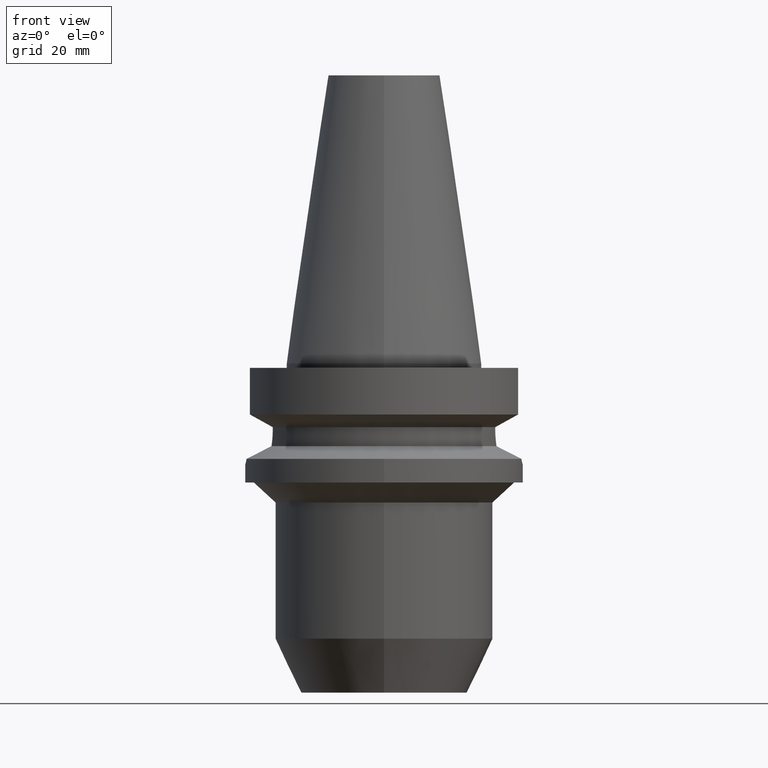
[diagram: clean part render]
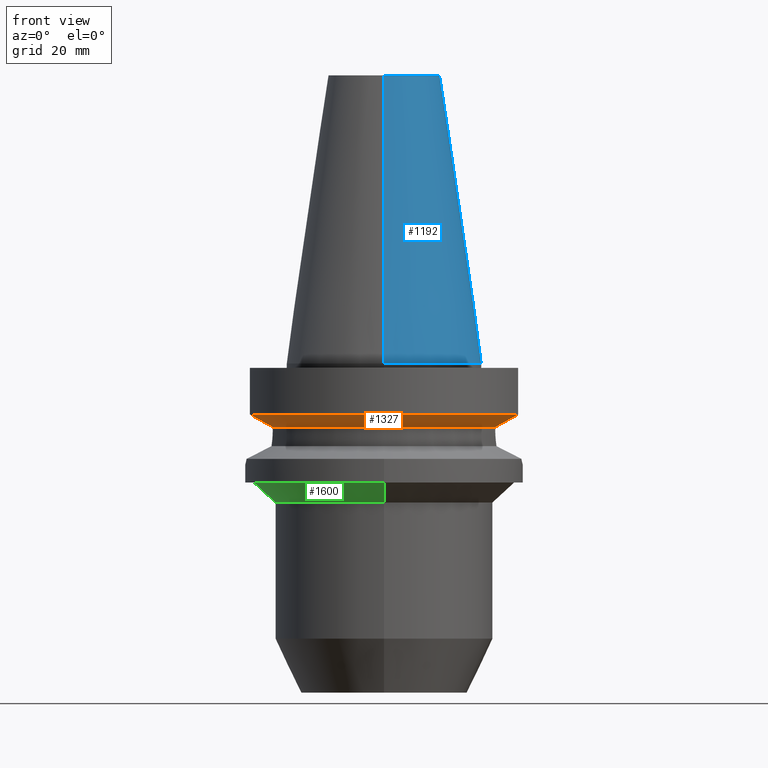
[diagram: same view with three faces highlighted in distinct colors, each labeled with its STEP entity id]
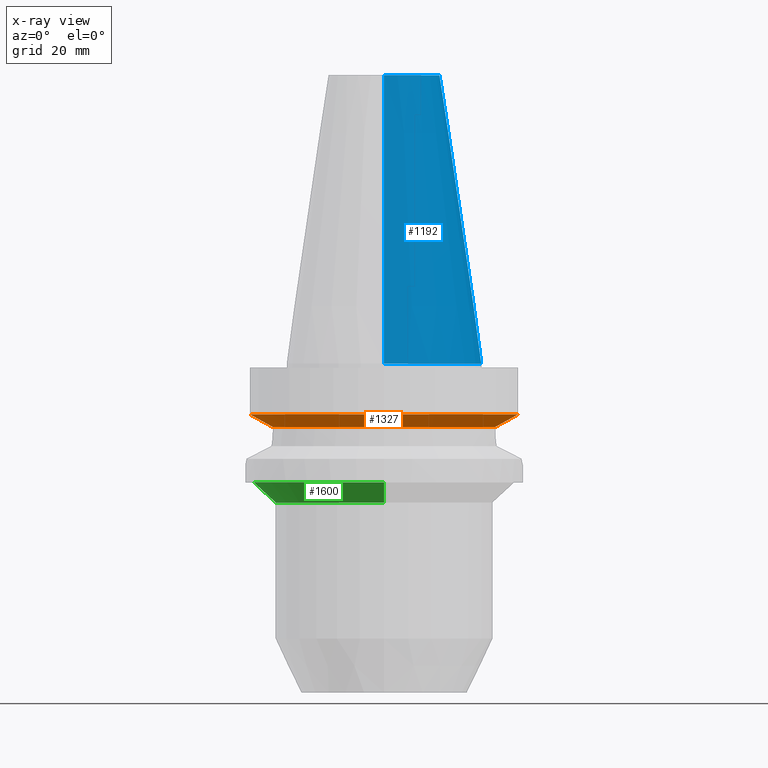
[diagram: x-ray of the same camera — body ghosted, the three highlighted faces saturated]
A machine part, front view with three faces highlighted in distinct colors.
The next image is the same camera in x-ray (body ghosted, the three faces saturated) — at least one of them is partly hidden behind the body in this view.
Their STEP definitions:

[orange] entity #1327 — the highlighted conical surface has half-angle 60 deg.
#207=CARTESIAN_POINT('',(-3.045402291444E1,-8.049999274961E0,
-1.156551218294E1));
#208=CARTESIAN_POINT('',(-2.987645776081E1,-8.049999274961E0,
-1.188789692372E1));
#209=CARTESIAN_POINT('',(-2.872091169851E1,-8.049999725977E0,
-1.253193797492E1));
#210=CARTESIAN_POINT('',(-2.698538635926E1,-8.050002046637E0,
-1.349404290632E1));
#211=CARTESIAN_POINT('',(-2.582730534774E1,-8.049995407196E0,
-1.413348345160E1));
#212=CARTESIAN_POINT('',(-2.524772413395E1,-8.049995407196E0,
-1.445229209363E1));
#251=CARTESIAN_POINT('',(0.E0,1.065333950388E-14,-1.156550565267E1));
#252=DIRECTION('',(0.E0,0.E0,1.E0));
#253=DIRECTION('',(-9.667943721520E-1,-2.555555555555E-1,0.E0));
#254=AXIS2_PLACEMENT_3D('',#251,#252,#253);
#259=CARTESIAN_POINT('',(0.E0,1.065333950388E-14,-1.156550565267E1));
#260=DIRECTION('',(0.E0,0.E0,1.E0));
#261=DIRECTION('',(0.E0,-1.E0,0.E0));
#262=AXIS2_PLACEMENT_3D('',#259,#260,#261);
#267=CARTESIAN_POINT('',(0.E0,1.065333950388E-14,-1.445225699861E1));
#268=DIRECTION('',(0.E0,0.E0,-1.E0));
#269=DIRECTION('',(9.527442516822E-1,-3.037735849057E-1,0.E0));
#270=AXIS2_PLACEMENT_3D('',#267,#268,#269);
#275=CARTESIAN_POINT('',(0.E0,1.065333950388E-14,-1.445225699861E1));
#276=DIRECTION('',(0.E0,0.E0,-1.E0));
#277=DIRECTION('',(0.E0,-1.E0,0.E0));
#278=AXIS2_PLACEMENT_3D('',#275,#276,#277);
#297=CARTESIAN_POINT('',(2.524772216615E1,-8.050001578933E0,-1.445224493417E1));
#298=CARTESIAN_POINT('',(2.582727365396E1,-8.050001578933E0,-1.413345271796E1));
#299=CARTESIAN_POINT('',(2.698547375107E1,-8.049999816622E0,-1.349419172193E1));
#300=CARTESIAN_POINT('',(2.872100135467E1,-8.049998273421E0,-1.253209131934E1));
#301=CARTESIAN_POINT('',(2.987642826708E1,-8.050004150935E0,-1.188786870602E1));
#302=CARTESIAN_POINT('',(3.045402162556E1,-8.050004150935E0,-1.156546826282E1));
#1097=CARTESIAN_POINT('',(-2.524772413395E1,-8.049995407196E0,
-1.445229209363E1));
#1098=VERTEX_POINT('',#1097);
#1099=CARTESIAN_POINT('',(2.524772266958E1,-8.05E0,-1.445225699861E1));
#1100=CARTESIAN_POINT('',(0.E0,-2.65E1,-1.445225699861E1));
#1101=VERTEX_POINT('',#1099);
#1102=VERTEX_POINT('',#1100);
#1113=CARTESIAN_POINT('',(-3.045402291444E1,-8.049999274961E0,
-1.156551218294E1));
#1114=VERTEX_POINT('',#1113);
#1140=CARTESIAN_POINT('',(0.E0,-3.15E1,-1.156550565267E1));
#1141=CARTESIAN_POINT('',(3.045402272279E1,-8.049999999999E0,
-1.156550565267E1));
#1142=VERTEX_POINT('',#1140);
#1143=VERTEX_POINT('',#1141);
#1311=CARTESIAN_POINT('',(0.E0,1.065333950388E-14,-1.300888132564E1));
#1312=DIRECTION('',(0.E0,0.E0,1.E0));
#1313=DIRECTION('',(0.E0,1.E0,0.E0));
#1314=AXIS2_PLACEMENT_3D('',#1311,#1312,#1313);
#1315=CONICAL_SURFACE('',#1314,2.9E1,6.E1);
#1316=ORIENTED_EDGE('',*,*,#1283,.F.);
#1318=ORIENTED_EDGE('',*,*,#1317,.T.);
#1320=ORIENTED_EDGE('',*,*,#1319,.T.);
#1322=ORIENTED_EDGE('',*,*,#1321,.F.);
#1323=ORIENTED_EDGE('',*,*,#1296,.T.);
#1324=ORIENTED_EDGE('',*,*,#1294,.T.);
#1325=EDGE_LOOP('',(#1316,#1318,#1320,#1322,#1323,#1324));
#1326=FACE_OUTER_BOUND('',#1325,.F.);
#213=B_SPLINE_CURVE_WITH_KNOTS('',3,(#207,#208,#209,#210,#211,#212),
.UNSPECIFIED.,.F.,.F.,(4,1,1,4),(0.E0,3.333333333333E-1,6.666666666667E-1,1.E0),
.UNSPECIFIED.);
#255=CIRCLE('',#254,3.15E1);
#263=CIRCLE('',#262,3.15E1);
#271=CIRCLE('',#270,2.65E1);
#279=CIRCLE('',#278,2.65E1);
#303=B_SPLINE_CURVE_WITH_KNOTS('',3,(#297,#298,#299,#300,#301,#302),
.UNSPECIFIED.,.F.,.F.,(4,1,1,4),(0.E0,3.333333333333E-1,6.666666666667E-1,1.E0),
.UNSPECIFIED.);
#1283=EDGE_CURVE('',#1114,#1098,#213,.T.);
#1294=EDGE_CURVE('',#1102,#1098,#279,.T.);
#1296=EDGE_CURVE('',#1101,#1102,#271,.T.);
#1317=EDGE_CURVE('',#1114,#1142,#255,.T.);
#1319=EDGE_CURVE('',#1142,#1143,#263,.T.);
#1321=EDGE_CURVE('',#1101,#1143,#303,.T.);
#1327=ADVANCED_FACE('',(#1326),#1315,.T.);

[blue] entity #1192 — the highlighted conical surface has half-angle 8.297 deg.
#26=CARTESIAN_POINT('',(0.E0,1.625106302469E-14,6.54E1));
#27=DIRECTION('',(0.E0,0.E0,-1.E0));
#28=DIRECTION('',(0.E0,1.E0,0.E0));
#29=AXIS2_PLACEMENT_3D('',#26,#27,#28);
#50=DIRECTION('',(0.E0,-1.443043893540E-1,-9.895333461856E-1));
#51=VECTOR('',#50,6.609175956738E1);
#52=CARTESIAN_POINT('',(0.E0,-1.268766899430E1,6.54E1));
#53=LINE('',#52,#51);
#65=DIRECTION('',(0.E0,1.443043893540E-1,-9.895333461856E-1));
#66=VECTOR('',#65,6.609175956738E1);
#67=CARTESIAN_POINT('',(0.E0,1.268766899430E1,6.54E1));
#68=LINE('',#67,#66);
#72=CARTESIAN_POINT('',(0.E0,1.625106302469E-14,0.E0));
#73=DIRECTION('',(0.E0,0.E0,-1.E0));
#74=DIRECTION('',(0.E0,1.E0,0.E0));
#75=AXIS2_PLACEMENT_3D('',#72,#73,#74);
#994=CARTESIAN_POINT('',(0.E0,-1.268766899430E1,6.54E1));
#995=CARTESIAN_POINT('',(0.E0,1.268766899430E1,6.54E1));
#996=VERTEX_POINT('',#994);
#997=VERTEX_POINT('',#995);
#1135=CARTESIAN_POINT('',(0.E0,2.2225E1,5.684341886081E-14));
#1136=VERTEX_POINT('',#1135);
#1137=CARTESIAN_POINT('',(0.E0,-2.2225E1,5.684341886081E-14));
#1138=VERTEX_POINT('',#1137);
#1180=CARTESIAN_POINT('',(0.E0,1.625106302469E-14,3.27E1));
#1181=DIRECTION('',(0.E0,0.E0,-1.E0));
#1182=DIRECTION('',(0.E0,-1.E0,0.E0));
#1183=AXIS2_PLACEMENT_3D('',#1180,#1181,#1182);
#1184=CONICAL_SURFACE('',#1183,1.745633449715E1,8.297E0);
#1185=ORIENTED_EDGE('',*,*,#1170,.T.);
#1187=ORIENTED_EDGE('',*,*,#1186,.T.);
#1188=ORIENTED_EDGE('',*,*,#1173,.F.);
#1189=ORIENTED_EDGE('',*,*,#1154,.F.);
#1190=EDGE_LOOP('',(#1185,#1187,#1188,#1189));
#1191=FACE_OUTER_BOUND('',#1190,.F.);
#30=CIRCLE('',#29,1.268766899430E1);
#76=CIRCLE('',#75,2.2225E1);
#1154=EDGE_CURVE('',#997,#996,#30,.T.);
#1170=EDGE_CURVE('',#997,#1136,#68,.T.);
#1173=EDGE_CURVE('',#996,#1138,#53,.T.);
#1186=EDGE_CURVE('',#1136,#1138,#76,.T.);
#1192=ADVANCED_FACE('',(#1191),#1184,.T.);

[green] entity #1600 — the highlighted conical surface has half-angle 48.273 deg.
#644=CARTESIAN_POINT('',(0.E0,0.E0,-2.7E1));
#645=DIRECTION('',(0.E0,0.E0,-1.E0));
#646=DIRECTION('',(0.E0,-1.E0,0.E0));
#647=AXIS2_PLACEMENT_3D('',#644,#645,#646);
#660=DIRECTION('',(0.E0,7.463246169762E-1,-6.655821257331E-1));
#661=VECTOR('',#660,6.852647965831E0);
#662=CARTESIAN_POINT('',(0.E0,-2.971429986837E1,-2.7E1));
#663=LINE('',#662,#661);
#667=CARTESIAN_POINT('',(0.E0,0.E0,-3.1561E1));
#668=DIRECTION('',(0.E0,0.E0,-1.E0));
#669=DIRECTION('',(0.E0,-1.E0,0.E0));
#670=AXIS2_PLACEMENT_3D('',#667,#668,#669);
#675=DIRECTION('',(0.E0,-7.463246169762E-1,-6.655821257331E-1));
#676=VECTOR('',#675,6.852647965831E0);
#677=CARTESIAN_POINT('',(0.E0,2.971429986837E1,-2.7E1));
#678=LINE('',#677,#676);
#1050=CARTESIAN_POINT('',(0.E0,2.46E1,-3.1561E1));
#1051=VERTEX_POINT('',#1050);
#1052=CARTESIAN_POINT('',(0.E0,-2.46E1,-3.1561E1));
#1053=VERTEX_POINT('',#1052);
#1054=CARTESIAN_POINT('',(0.E0,2.971429986837E1,-2.7E1));
#1055=VERTEX_POINT('',#1054);
#1056=CARTESIAN_POINT('',(0.E0,-2.971429986837E1,-2.7E1));
#1057=VERTEX_POINT('',#1056);
#1586=CARTESIAN_POINT('',(0.E0,0.E0,-2.92805E1));
#1587=DIRECTION('',(0.E0,0.E0,1.E0));
#1588=DIRECTION('',(0.E0,1.E0,0.E0));
#1589=AXIS2_PLACEMENT_3D('',#1586,#1587,#1588);
#1590=CONICAL_SURFACE('',#1589,2.715714993419E1,4.8273E1);
#1592=ORIENTED_EDGE('',*,*,#1591,.F.);
#1593=ORIENTED_EDGE('',*,*,#1579,.F.);
#1595=ORIENTED_EDGE('',*,*,#1594,.T.);
#1597=ORIENTED_EDGE('',*,*,#1596,.T.);
#1598=EDGE_LOOP('',(#1592,#1593,#1595,#1597));
#1599=FACE_OUTER_BOUND('',#1598,.F.);
#648=CIRCLE('',#647,2.971429986837E1);
#671=CIRCLE('',#670,2.46E1);
#1579=EDGE_CURVE('',#1057,#1055,#648,.T.);
#1591=EDGE_CURVE('',#1055,#1051,#678,.T.);
#1594=EDGE_CURVE('',#1057,#1053,#663,.T.);
#1596=EDGE_CURVE('',#1053,#1051,#671,.T.);
#1600=ADVANCED_FACE('',(#1599),#1590,.T.);